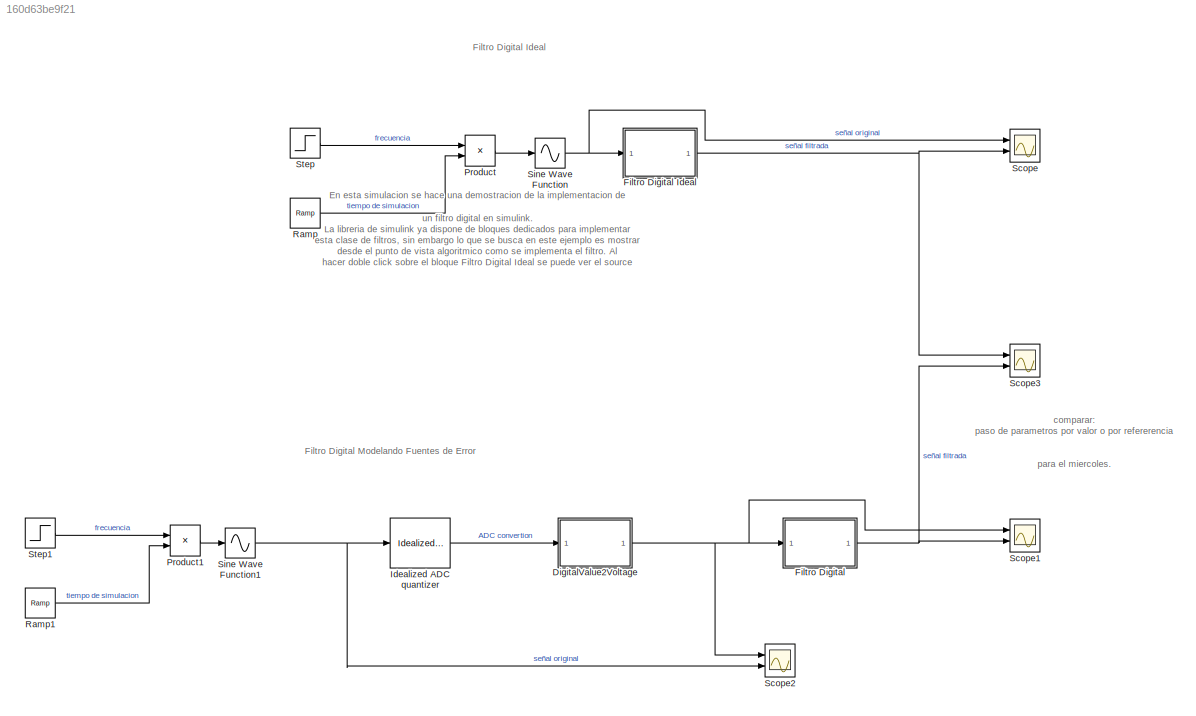
MODEL slx_160d63be9f21
KIND model
CONFIG AbsTol = auto
CONFIG EnableMultiTasking = off
CONFIG FixedStep = auto
CONFIG MaxStep = 1e-4
CONFIG MinStep = auto
CONFIG RelTol = 1e-3
CONFIG SampleTimeConstraint = Unconstrained
CONFIG Solver = VariableStepAuto
CONFIG SolverName = VariableStepAuto
CONFIG StartTime = 0.0
CONFIG StopTime = .4
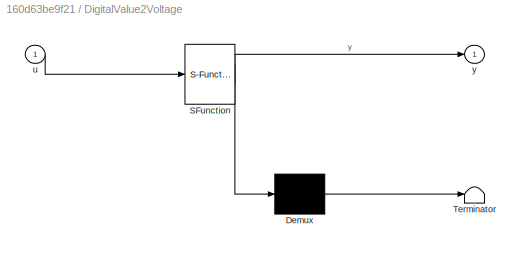
BLOCK [SubSystem] DigitalValue2Voltage
  ErrorFcn = Stateflow.Translate.translate
  PermitHierarchicalResolution = ExplicitOnly
  Ports = [1, 1]
  RequestExecContextInheritance = off
  SFBlockType = MATLAB Function
  SystemSampleTime = 1e-3
  TreatAsAtomicUnit = on
  Variant = off
BLOCK [Demux] DigitalValue2Voltage/ Demux 
  Outputs = 1
  Ports = [1, 1]
BLOCK [S-Function] DigitalValue2Voltage/ SFunction 
  EnableBusSupport = on
  FunctionName = sf_sfun
  PortCounts = [1 2]
  Ports = [1, 2]
  SFcnIsStateOwnerBlock = off
  SFunctionDeploymentMode = off
  Tag = Stateflow S-Function DigitalFilterExample 3
BLOCK [Terminator] DigitalValue2Voltage/ Terminator 
BLOCK [Inport] DigitalValue2Voltage/u
  IconDisplay = Port number
BLOCK [Outport] DigitalValue2Voltage/y
  IconDisplay = Port number
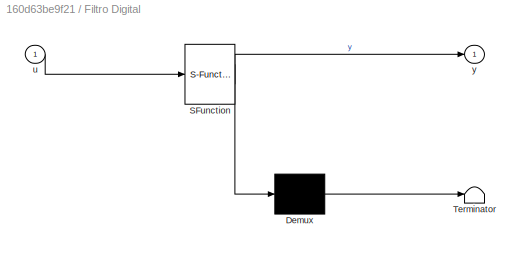
BLOCK [SubSystem] Filtro Digital
  ErrorFcn = Stateflow.Translate.translate
  PermitHierarchicalResolution = ExplicitOnly
  Ports = [1, 1]
  RequestExecContextInheritance = off
  SFBlockType = MATLAB Function
  SystemSampleTime = 1e-3
  TreatAsAtomicUnit = on
  Variant = off
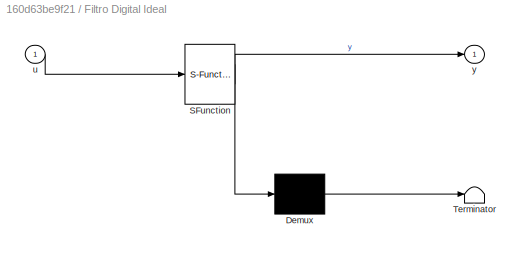
BLOCK [SubSystem] Filtro Digital Ideal
  ErrorFcn = Stateflow.Translate.translate
  PermitHierarchicalResolution = ExplicitOnly
  Ports = [1, 1]
  RequestExecContextInheritance = off
  SFBlockType = MATLAB Function
  SystemSampleTime = 1e-3
  TreatAsAtomicUnit = on
  Variant = off
BLOCK [Demux] Filtro Digital Ideal/ Demux 
  Outputs = 1
  Ports = [1, 1]
BLOCK [S-Function] Filtro Digital Ideal/ SFunction 
  EnableBusSupport = on
  FunctionName = sf_sfun
  PortCounts = [1 2]
  Ports = [1, 2]
  SFcnIsStateOwnerBlock = off
  SFunctionDeploymentMode = off
  Tag = Stateflow S-Function DigitalFilterExample 2
BLOCK [Terminator] Filtro Digital Ideal/ Terminator 
BLOCK [Inport] Filtro Digital Ideal/u
  IconDisplay = Port number
BLOCK [Outport] Filtro Digital Ideal/y
  IconDisplay = Port number
BLOCK [Demux] Filtro Digital/ Demux 
  Outputs = 1
  Ports = [1, 1]
BLOCK [S-Function] Filtro Digital/ SFunction 
  EnableBusSupport = on
  FunctionName = sf_sfun
  PortCounts = [1 2]
  Ports = [1, 2]
  SFcnIsStateOwnerBlock = off
  SFunctionDeploymentMode = off
  Tag = Stateflow S-Function DigitalFilterExample 1
BLOCK [Terminator] Filtro Digital/ Terminator 
BLOCK [Inport] Filtro Digital/u
  IconDisplay = Port number
BLOCK [Outport] Filtro Digital/y
  IconDisplay = Port number
BLOCK [Reference] Idealized ADC quantizer  REF=simulink_extras/Additional
Discrete/Idealized ADC quantizer
  AttributesFormatString = (settings: %<NumberOfConverterBits>-bit converter\nVmin: %<Vmin>, Vmax: %<Vmax>)
  Ports = [1, 1]
  SourceBlock = simulink_extras/Additional\nDiscrete/Idealized ADC quantizer
  SourceProductBaseCode = SL
  SourceProductName = Simulink
  SourceType = IdealADC
BLOCK [Product] Product
  InputSameDT = off
  OutDataTypeStr = Inherit: Inherit via internal rule
  Ports = [2, 1]
  RndMeth = Floor
  SaturateOnIntegerOverflow = off
BLOCK [Product] Product1
  InputSameDT = off
  OutDataTypeStr = Inherit: Inherit via internal rule
  Ports = [2, 1]
  RndMeth = Floor
  SaturateOnIntegerOverflow = off
BLOCK [Reference] Ramp  REF=simulink/Sources/Ramp
  Ports = [0, 1]
  SourceBlock = simulink/Sources/Ramp
  SourceProductBaseCode = SL
  SourceProductName = Simulink
  SourceType = Ramp
BLOCK [Reference] Ramp1  REF=simulink/Sources/Ramp
  Ports = [0, 1]
  SourceBlock = simulink/Sources/Ramp
  SourceProductBaseCode = SL
  SourceProductName = Simulink
  SourceType = Ramp
BLOCK [Scope] Scope
  NumInputPorts = 2
  Ports = [2]
  ScopeSpecificationString = Simulink.scopes.TimeScopeBlockCfg('CurrentConfiguration', extmgr.ConfigurationSet(extmgr.Configuration('Core','General UI',true),extmgr.Configuration('Core','Source UI',true),extmgr.Configuration('Sources','WiredSimulink',true),extmgr.Configuration('Visuals','Time Domain',true,'SerializedDisplays',{struct('MinYLimReal','-2.5','MaxYLimReal','2.5','YLabelReal','','MinYLimMag','0.00000','MaxYLimMag',...<+1406ch>
BLOCK [Scope] Scope1
  NumInputPorts = 2
  Ports = [2]
  ScopeSpecificationString = Simulink.scopes.TimeScopeBlockCfg('CurrentConfiguration', extmgr.ConfigurationSet(extmgr.Configuration('Core','General UI',true),extmgr.Configuration('Core','Source UI',true),extmgr.Configuration('Sources','WiredSimulink',true,'DataLoggingVariableName','ScopeData1'),extmgr.Configuration('Visuals','Time Domain',true,'SerializedDisplays',{struct('MinYLimReal','-2.50244','MaxYLimReal','2.50244','YLab...<+1475ch>
BLOCK [Scope] Scope2
  NumInputPorts = 2
  Ports = [2]
  ScopeSpecificationString = Simulink.scopes.TimeScopeBlockCfg('CurrentConfiguration', extmgr.ConfigurationSet(extmgr.Configuration('Core','General UI',true),extmgr.Configuration('Core','Source UI',true),extmgr.Configuration('Sources','WiredSimulink',true,'DataLoggingVariableName','ScopeData2'),extmgr.Configuration('Visuals','Time Domain',true,'SerializedDisplays',{struct('MinYLimReal','1.0854','MaxYLimReal','2.36031','YLabel...<+1461ch>
BLOCK [Scope] Scope3
  NumInputPorts = 2
  Ports = [2]
  ScopeSpecificationString = Simulink.scopes.TimeScopeBlockCfg('CurrentConfiguration', extmgr.ConfigurationSet(extmgr.Configuration('Core','General UI',true),extmgr.Configuration('Core','Source UI',true),extmgr.Configuration('Sources','WiredSimulink',true,'DataLoggingVariableName','ScopeData1'),extmgr.Configuration('Visuals','Time Domain',true,'SerializedDisplays',{struct('MinYLimReal','-2.3687','MaxYLimReal','2.3687','YLabel...<+1455ch>
BLOCK [Sin] Sine Wave Function
  Amplitude = 2
  Ports = [1, 1]
  SampleTime = 0
  TimeSource = Use external signal
BLOCK [Sin] Sine Wave Function1
  Amplitude = 2
  Ports = [1, 1]
  SampleTime = 0
  TimeSource = Use external signal
BLOCK [Step] Step
  After = 2*pi*100
  Before = 2*pi*55
  SampleTime = 0
  Time = .2
BLOCK [Step] Step1
  After = 2*pi*100
  Before = 2*pi*55
  SampleTime = 0
  Time = .2
ANNOTATION (root): Filtro Digital Ideal
ANNOTATION (root): Filtro Digital Modelando Fuentes de Error
ANNOTATION (root): En esta simulacion se hace una demostracion de la implementacion de un filtro digital en simulink. La libreria de simulink ya dispone de bloques dedicados para implementar esta clase de filtros, sin embargo lo que se busca en este ejemplo es mostrar desde el punto de vista algoritmico como se implementa el filtro. Al hacer doble click sobre el bloque Filtro Digital Ideal se puede ver el source cod...<+315ch>
ANNOTATION (root): comparar: paso de parametros por valor o por refererencia para el miercoles.
NET DigitalValue2Voltage:1 -> Filtro Digital:1, Scope1:1, Scope2:1
NET Filtro Digital Ideal:1 -> Scope3:1, Scope:2
NET Filtro Digital:1 -> Scope1:2, Scope3:2
LINE Idealized ADC quantizer:1 -> DigitalValue2Voltage:1
LINE Product1:1 -> Sine Wave Function1:1
LINE Product:1 -> Sine Wave Function:1
LINE Ramp1:1 -> Product1:2
LINE Ramp:1 -> Product:2
NET Sine Wave Function1:1 -> Idealized ADC quantizer:1, Scope2:2
NET Sine Wave Function:1 -> Filtro Digital Ideal:1, Scope:1
LINE Step1:1 -> Product1:1
LINE Step:1 -> Product:1
note: NET lines group one-source signal fan-out (src -> all destinations, sorted); 1:1 wires keep LINE
CHART Filtro Digital states=1 transitions=1
  STATE_LABEL 'eML_blk_kernel()'
  STATE_LABEL 'SCRIPT:\nfunction y = fcn(u)\n\n\n% coeficientes del filtro fir\nFIR = [-0.00128380297866020 -0.00132399486984157 0.000874051194962120 0.00518832470467140 0.00810033142850478 0.00521435647752571 -0.00383759191001733 -0.0130617913066840 -0.0144823190219763 -0.00642101723421765 0.00313914084679193 0.00398182413302851 -0.00377232760690022 -0.00607061854849465 0.0117264683573292 0.0446289841467845 0.062996...<+1517ch>'
CHART Filtro Digital Ideal states=1 transitions=1
  STATE_LABEL 'eML_blk_kernel()'
  STATE_LABEL 'SCRIPT:\nfunction y = fcn(u)\n\n\n% coeficientes del filtro fir\nFIR = [-0.00128380297866020 -0.00132399486984157 0.000874051194962120 0.00518832470467140 0.00810033142850478 0.00521435647752571 -0.00383759191001733 -0.0130617913066840 -0.0144823190219763 -0.00642101723421765 0.00313914084679193 0.00398182413302851 -0.00377232760690022 -0.00607061854849465 0.0117264683573292 0.0446289841467845 0.062996...<+1184ch>'
CHART DigitalValue2Voltage states=1 transitions=1
  STATE_LABEL 'eML_blk_kernel()'
  STATE_LABEL 'SCRIPT:\nfunction y = fcn(u)\n\n\nbits = 9; % resolucion del adc (10 bits  en este caso)\n% sin embargo, debido a que se deben representar tambien valores negativos\n% entonces la resolucion se reduce a la mitad. por eso no se pone 2^10 sino\n% que se tienen 2^9 valores para representar valores positivos y 2^9\n% valores para representar valores negativos.\nref = 5; % tension de referencia del ADC \n\ny = u/...<+14ch>'
